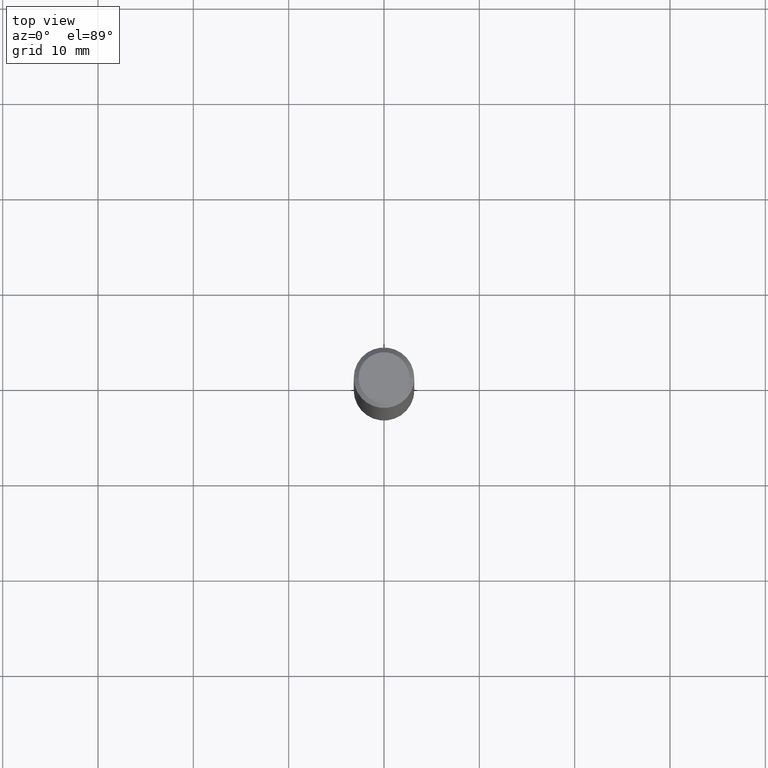
[diagram: clean part render]
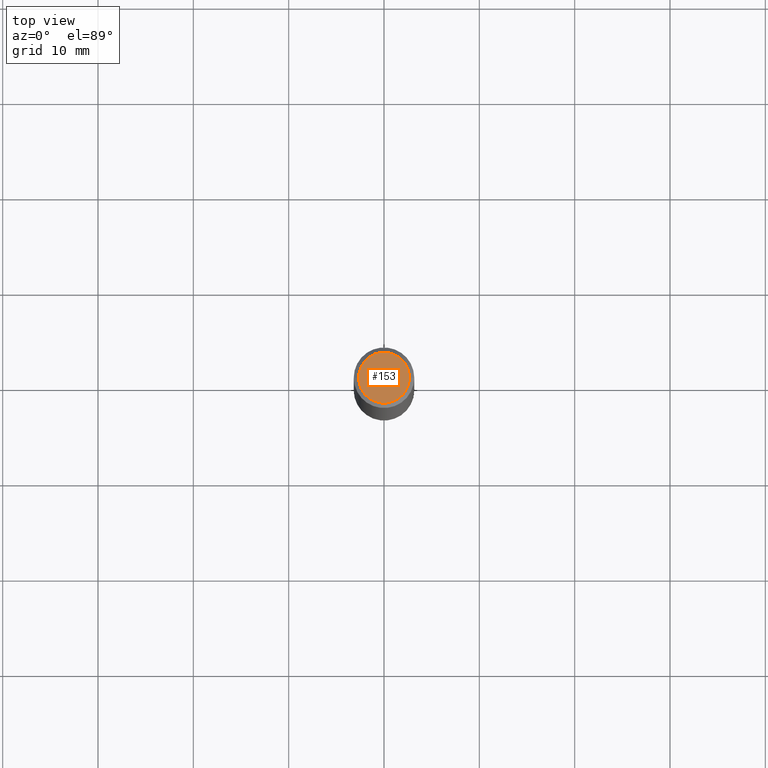
[diagram: same view with one face highlighted and labeled with its STEP entity id]
A machine part, top view. The second image highlights one B-rep face of the part: STEP entity #153.
In plain terms, the highlighted planar face has unit normal (0, -0, -1).
Its self-contained STEP definition (entity closure, byte-faithful):
#10 = ORIENTED_EDGE ( 'NONE', *, *, #450, .T. ) ;
#17 = AXIS2_PLACEMENT_3D ( 'NONE', #200, #264, #411 ) ;
#56 = CIRCLE ( 'NONE', #387, 0.1049999999999992190 ) ;
#90 = CARTESIAN_POINT ( 'NONE',  ( 1.148236555768741665E-45, -1.639377487418492057E-31, -4.695363739110452099E-17 ) ) ;
#109 = EDGE_LOOP ( 'NONE', ( #467, #10 ) ) ;
#113 = DIRECTION ( 'NONE',  ( -1.000000000000000000, 6.982962677686265922E-15, -4.876176775795935793E-29 ) ) ;
#119 = VERTEX_POINT ( 'NONE', #477 ) ;
#153 = ADVANCED_FACE ( 'NONE', ( #417 ), #272, .F. ) ;
#160 = CARTESIAN_POINT ( 'NONE',  ( 7.332110811570524037E-16, 0.1049999999999992190, -3.900823592740798305E-16 ) ) ;
#200 = CARTESIAN_POINT ( 'NONE',  ( 1.148236555768741665E-45, -1.639377487418492057E-31, -4.695363739110452099E-17 ) ) ;
#238 = EDGE_CURVE ( 'NONE', #119, #426, #396, .T. ) ;
#251 = DIRECTION ( 'NONE',  ( -2.445468806185136597E-29, 3.491481338843145583E-15, 1.000000000000000000 ) ) ;
#254 = AXIS2_PLACEMENT_3D ( 'NONE', #160, #377, #113 ) ;
#264 = DIRECTION ( 'NONE',  ( -2.445468806185136597E-29, 3.491481338843145583E-15, 1.000000000000000000 ) ) ;
#272 = PLANE ( 'NONE',  #254 ) ;
#319 = CARTESIAN_POINT ( 'NONE',  ( 0.1049999999999992190, -8.238720831321523396E-16, -4.695363739109907908E-17 ) ) ;
#377 = DIRECTION ( 'NONE',  ( 2.438088387897960049E-29, -3.491481338843145188E-15, -1.000000000000000000 ) ) ;
#387 = AXIS2_PLACEMENT_3D ( 'NONE', #90, #251, #393 ) ;
#393 = DIRECTION ( 'NONE',  ( 1.000000000000000000, -6.982962677686267499E-15, 4.874400871621274649E-29 ) ) ;
#396 = CIRCLE ( 'NONE', #17, 0.1049999999999992190 ) ;
#411 = DIRECTION ( 'NONE',  ( 1.000000000000000000, -6.982962677686267499E-15, 4.874400871621274649E-29 ) ) ;
#417 = FACE_OUTER_BOUND ( 'NONE', #109, .T. ) ;
#426 = VERTEX_POINT ( 'NONE', #319 ) ;
#450 = EDGE_CURVE ( 'NONE', #426, #119, #56, .T. ) ;
#467 = ORIENTED_EDGE ( 'NONE', *, *, #238, .T. ) ;
#477 = CARTESIAN_POINT ( 'NONE',  ( -0.1049999999999992190, 7.681258945454834611E-16, -4.695363739110977184E-17 ) ) ;